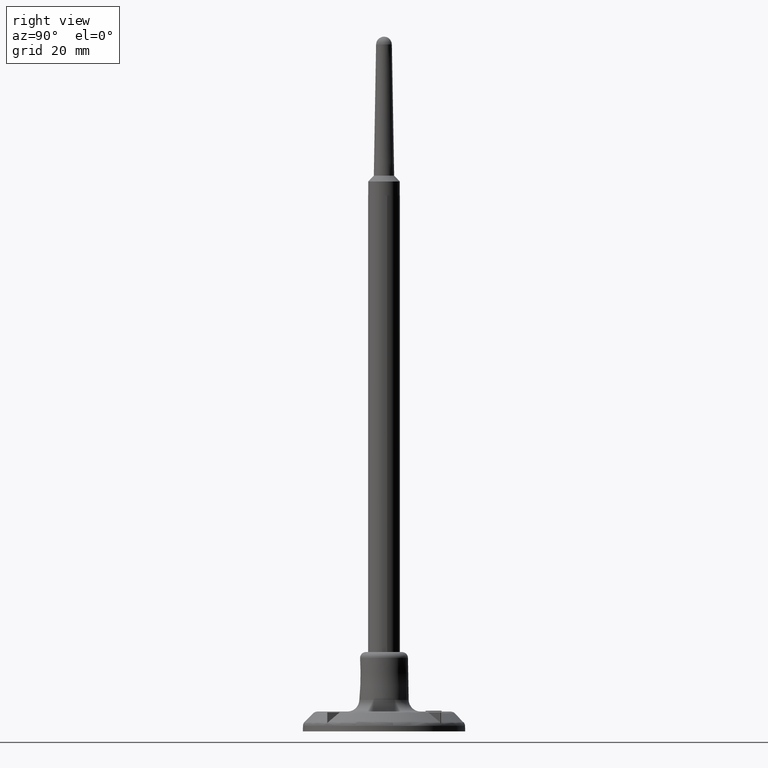
[diagram: clean part render]
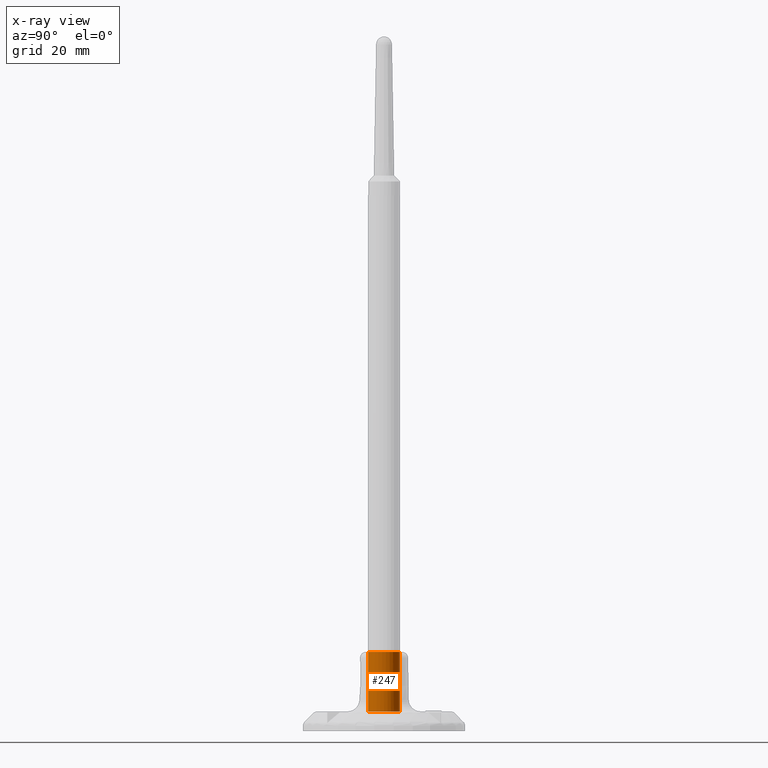
[diagram: x-ray — body ghosted, one internal face saturated and labeled with its STEP entity id]
A machine part, right view, then the same camera in x-ray: the body is ghosted and one INTERNAL B-rep face — a face not visible from any outside direction — is saturated and labeled: STEP entity #247.
In plain terms, the highlighted cylindrical surface (bore or boss wall) has radius 4 mm, axis along (-0, 0, 1).
Its self-contained STEP definition (entity closure, byte-faithful):
#247 = ADVANCED_FACE( '', ( #476, #477 ), #478, .F. );
#476 = FACE_OUTER_BOUND( '', #764, .T. );
#477 = FACE_OUTER_BOUND( '', #765, .T. );
#478 = CYLINDRICAL_SURFACE( '', #766, 4.00000000000000 );
#764 = EDGE_LOOP( '', ( #1479 ) );
#765 = EDGE_LOOP( '', ( #1480 ) );
#766 = AXIS2_PLACEMENT_3D( '', #1481, #1482, #1483 );
#1479 = ORIENTED_EDGE( '', *, *, #1977, .F. );
#1480 = ORIENTED_EDGE( '', *, *, #1980, .T. );
#1481 = CARTESIAN_POINT( '', ( 0.000000000000000, 6.42911502455149E-015, 34.9996280001010 ) );
#1482 = DIRECTION( '', ( -1.12474554136660E-032, 1.83690953073357E-016, 1.00000000000000 ) );
#1483 = DIRECTION( '', ( -1.00000000000000, 0.000000000000000, -1.12474554136660E-032 ) );
#1977 = EDGE_CURVE( '', #2394, #2394, #2395, .T. );
#1980 = EDGE_CURVE( '', #2400, #2400, #2401, .F. );
#2394 = VERTEX_POINT( '', #3138 );
#2395 = CIRCLE( '', #3139, 4.00000000000000 );
#2400 = VERTEX_POINT( '', #3144 );
#2401 = CIRCLE( '', #3145, 4.00000000000000 );
#3138 = CARTESIAN_POINT( '', ( 4.00000000000000, 9.18386432332240E-016, 4.99962800000000 ) );
#3139 = AXIS2_PLACEMENT_3D( '', #3556, #3557, #3558 );
#3144 = CARTESIAN_POINT( '', ( 1.68711831206127E-031, 4.00000000000000, 19.9996280000000 ) );
#3145 = AXIS2_PLACEMENT_3D( '', #3565, #3566, #3567 );
#3556 = CARTESIAN_POINT( '', ( 0.000000000000000, 9.18386432332240E-016, 4.99962800000000 ) );
#3557 = DIRECTION( '', ( -1.12474554136660E-032, -3.31494814237443E-017, 1.00000000000000 ) );
#3558 = DIRECTION( '', ( 1.00000000000000, 0.000000000000000, 1.12474554136660E-032 ) );
#3565 = CARTESIAN_POINT( '', ( 1.68711831206127E-031, 3.67375072843259E-015, 19.9996280000000 ) );
#3566 = DIRECTION( '', ( 1.12474554136660E-032, -1.83690953073357E-016, -1.00000000000000 ) );
#3567 = DIRECTION( '', ( 0.000000000000000, 1.00000000000000, -1.83690953073357E-016 ) );